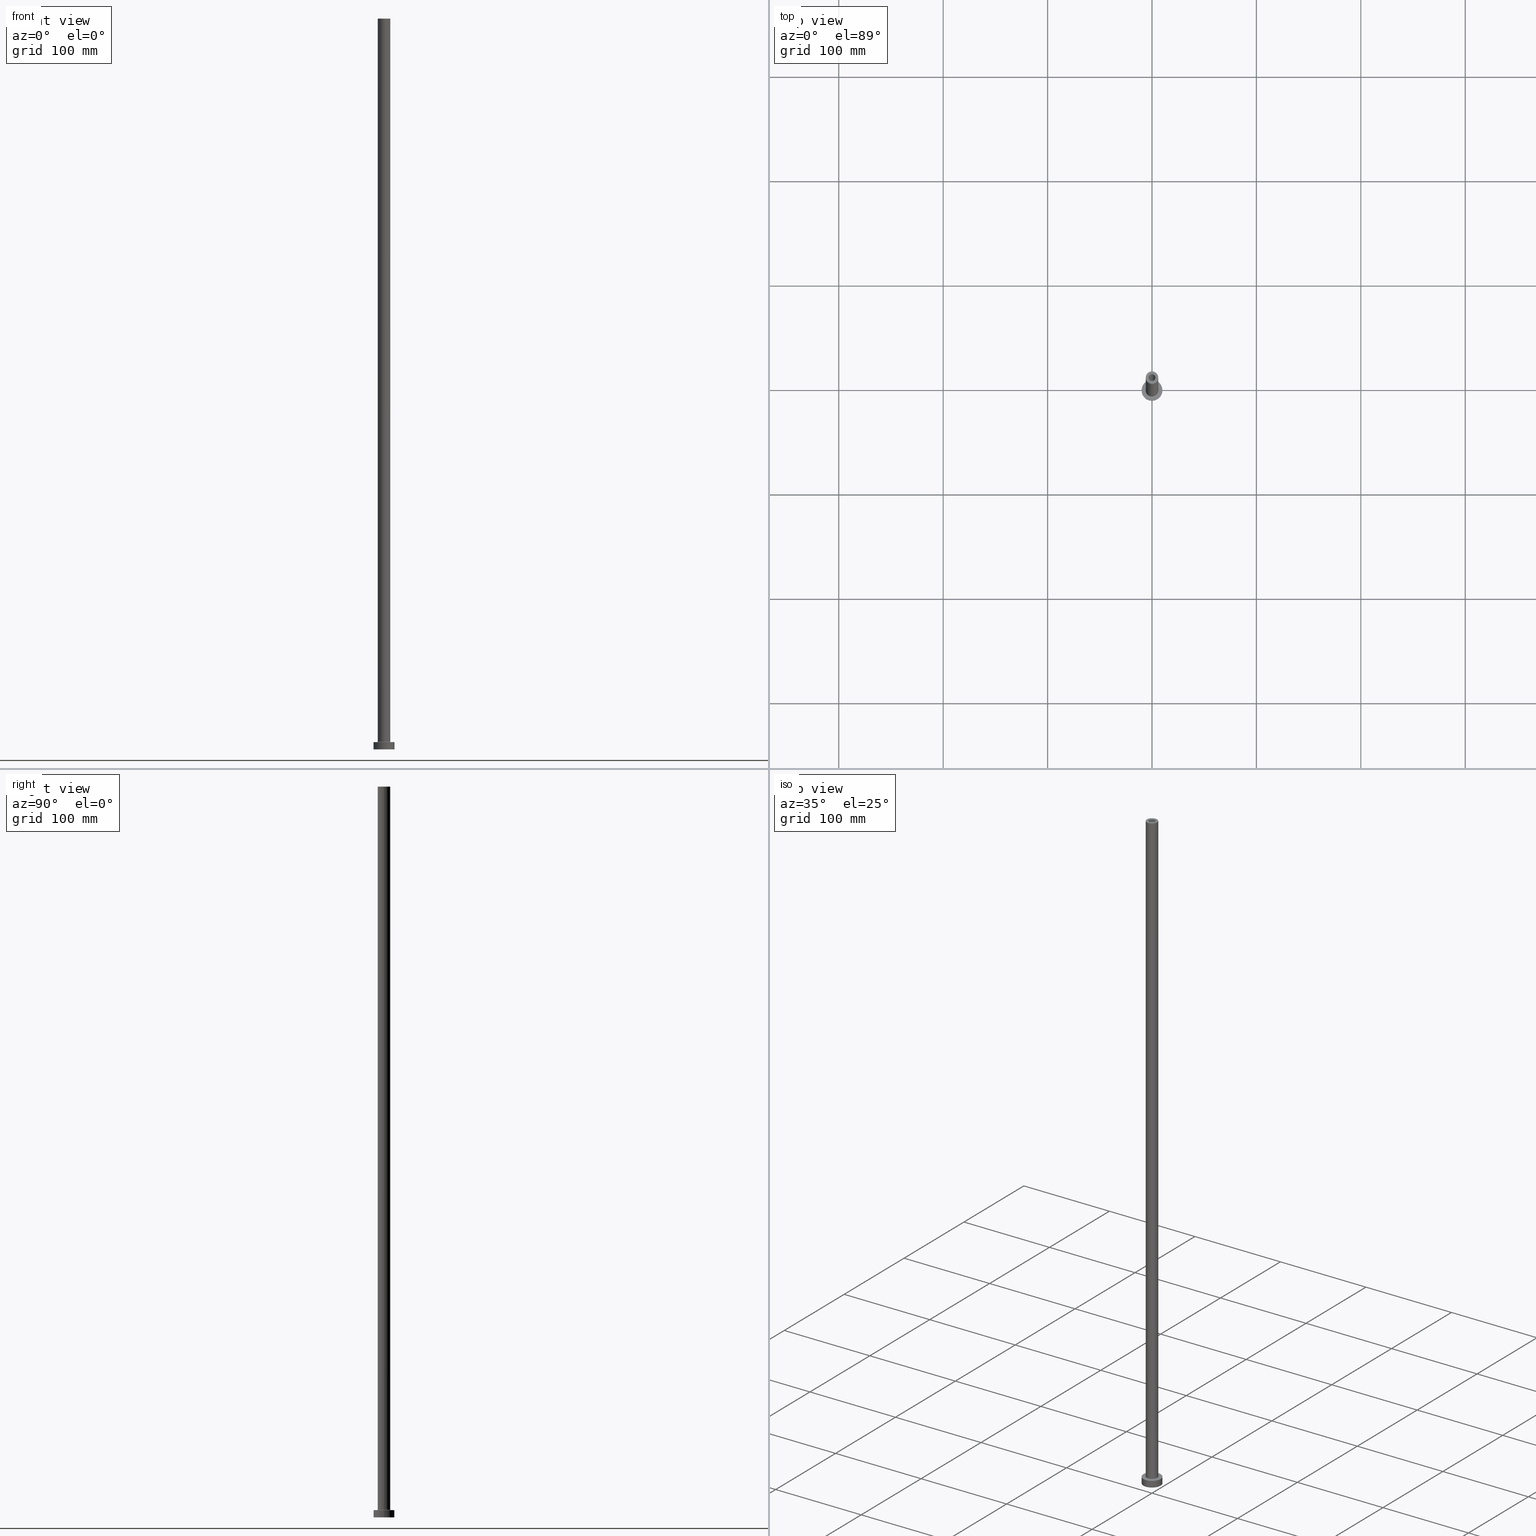
[diagram: canonical four-view strip — front | top / right | iso, engineering-drawing reading convention]
A machine part, canonical four-view strip (front | top / right | iso — engineering-drawing reading convention). The complete STEP part file that produces these views, byte-faithful:
ISO-10303-21;
HEADER;
FILE_DESCRIPTION (( 'STEP AP203' ),
    '1' );
FILE_NAME ('1a08.STEP',
    '2023-02-13T13:29:11',
    ( '' ),
    ( '' ),
    'SwSTEP 2.0',
    'SolidWorks 2019',
    '' );
FILE_SCHEMA (( 'CONFIG_CONTROL_DESIGN' ));
ENDSEC;

DATA;
#1 = DATE_TIME_ROLE ( 'creation_date' ) ;
#2 = PERSON_AND_ORGANIZATION_ROLE ( 'classification_officer' ) ;
#3 = EDGE_CURVE ( 'NONE', #100, #349, #290, .T. ) ;
#4 = ORIENTED_EDGE ( 'NONE', *, *, #400, .F. ) ;
#5 = TOROIDAL_SURFACE ( 'NONE', #140, 6.500000000000000888, 0.5000000000000000000 ) ;
#6 = ORIENTED_EDGE ( 'NONE', *, *, #285, .F. ) ;
#7 = CC_DESIGN_DATE_AND_TIME_ASSIGNMENT ( #170, #1, ( #449 ) ) ;
#8 = FACE_OUTER_BOUND ( 'NONE', #206, .T. ) ;
#9 = DIRECTION ( 'NONE',  ( 1.000000000000000000, 0.000000000000000000, 0.000000000000000000 ) ) ;
#10 = CARTESIAN_POINT ( 'NONE',  ( -6.000000000000000888, 0.000000000000000000, 700.0000000000000000 ) ) ;
#11 = LOCAL_TIME ( 14, 29, 11.00000000000000000, #189 ) ;
#12 = FACE_OUTER_BOUND ( 'NONE', #168, .T. ) ;
#13 = CARTESIAN_POINT ( 'NONE',  ( 0.000000000000000000, 0.000000000000000000, 7.000000000000000000 ) ) ;
#14 = FACE_OUTER_BOUND ( 'NONE', #457, .T. ) ;
#15 = EDGE_CURVE ( 'NONE', #311, #226, #258, .T. ) ;
#16 = CARTESIAN_POINT ( 'NONE',  ( -3.399999999999999911, 0.000000000000000000, 654.9999999999998863 ) ) ;
#17 = ORIENTED_EDGE ( 'NONE', *, *, #395, .T. ) ;
#18 = DIRECTION ( 'NONE',  ( 0.000000000000000000, 0.000000000000000000, 1.000000000000000000 ) ) ;
#19 = CARTESIAN_POINT ( 'NONE',  ( 3.250000000000000444, 3.980102097228898231E-16, 654.9999999999998863 ) ) ;
#20 = CARTESIAN_POINT ( 'NONE',  ( 0.000000000000000000, 0.000000000000000000, 700.0000000000000000 ) ) ;
#21 = CARTESIAN_POINT ( 'NONE',  ( -10.00000000000000000, 0.000000000000000000, 0.000000000000000000 ) ) ;
#22 = CARTESIAN_POINT ( 'NONE',  ( 0.000000000000000000, 0.000000000000000000, 654.9999999999998863 ) ) ;
#23 = ADVANCED_FACE ( 'NONE', ( #116, #152 ), #77, .T. ) ;
#24 = EDGE_LOOP ( 'NONE', ( #6, #107 ) ) ;
#25 = ORIENTED_EDGE ( 'NONE', *, *, #356, .F. ) ;
#26 = CARTESIAN_POINT ( 'NONE',  ( -3.250000000000000444, 0.000000000000000000, 654.9999999999998863 ) ) ;
#27 = DIRECTION ( 'NONE',  ( 1.000000000000000000, 0.000000000000000000, -0.000000000000000000 ) ) ;
#28 = AXIS2_PLACEMENT_3D ( 'NONE', #267, #312, #224 ) ;
#29 = EDGE_LOOP ( 'NONE', ( #273, #57, #423, #371 ) ) ;
#30 = VERTEX_POINT ( 'NONE', #149 ) ;
#31 = DIRECTION ( 'NONE',  ( 0.000000000000000000, 0.000000000000000000, 1.000000000000000000 ) ) ;
#32 = CALENDAR_DATE ( 2023, 13, 2 ) ;
#33 = APPROVAL_DATE_TIME ( #357, #389 ) ;
#34 = CIRCLE ( 'NONE', #54, 6.000000000000000888 ) ;
#35 = ADVANCED_FACE ( 'NONE', ( #294, #364 ), #41, .F. ) ;
#36 = ORIENTED_EDGE ( 'NONE', *, *, #15, .T. ) ;
#37 = CARTESIAN_POINT ( 'NONE',  ( 0.000000000000000000, 0.000000000000000000, 700.0000000000000000 ) ) ;
#38 = CIRCLE ( 'NONE', #118, 10.00000000000000000 ) ;
#39 = DIRECTION ( 'NONE',  ( -1.000000000000000000, 0.000000000000000000, 0.000000000000000000 ) ) ;
#40 = DIRECTION ( 'NONE',  ( 1.000000000000000000, 0.000000000000000000, 0.000000000000000000 ) ) ;
#41 = PLANE ( 'NONE',  #460 ) ;
#42 = DIRECTION ( 'NONE',  ( -0.000000000000000000, -0.000000000000000000, -1.000000000000000000 ) ) ;
#43 = FACE_OUTER_BOUND ( 'NONE', #346, .T. ) ;
#44 = CC_DESIGN_APPROVAL ( #179, ( #449 ) ) ;
#45 = CIRCLE ( 'NONE', #216, 10.00000000000000000 ) ;
#46 = DIRECTION ( 'NONE',  ( -1.000000000000000000, 0.000000000000000000, 0.000000000000000000 ) ) ;
#47 = EDGE_CURVE ( 'NONE', #100, #345, #367, .T. ) ;
#48 = DIRECTION ( 'NONE',  ( 0.000000000000000000, 0.000000000000000000, -1.000000000000000000 ) ) ;
#49 = DIRECTION ( 'NONE',  ( -0.000000000000000000, -0.000000000000000000, -1.000000000000000000 ) ) ;
#50 = PLANE ( 'NONE',  #173 ) ;
#51 = ADVANCED_FACE ( 'NONE', ( #80, #43 ), #185, .T. ) ;
#52 = EDGE_LOOP ( 'NONE', ( #99, #72 ) ) ;
#53 = CARTESIAN_POINT ( 'NONE',  ( 0.000000000000000000, 0.000000000000000000, 7.000000000000000000 ) ) ;
#54 = AXIS2_PLACEMENT_3D ( 'NONE', #413, #31, #93 ) ;
#55 = DIRECTION ( 'NONE',  ( 0.000000000000000000, 0.000000000000000000, 1.000000000000000000 ) ) ;
#56 = PERSON_AND_ORGANIZATION ( #196, #355 ) ;
#57 = ORIENTED_EDGE ( 'NONE', *, *, #161, .T. ) ;
#58 = DIRECTION ( 'NONE',  ( -0.000000000000000000, -0.000000000000000000, -1.000000000000000000 ) ) ;
#59 =( NAMED_UNIT ( * ) SI_UNIT ( $, .STERADIAN. ) SOLID_ANGLE_UNIT ( ) );
#60 = EDGE_LOOP ( 'NONE', ( #453, #61, #212, #199 ) ) ;
#61 = ORIENTED_EDGE ( 'NONE', *, *, #202, .T. ) ;
#62 =( LENGTH_UNIT ( ) NAMED_UNIT ( * ) SI_UNIT ( .MILLI., .METRE. ) );
#63 = AXIS2_PLACEMENT_3D ( 'NONE', #266, #343, #341 ) ;
#64 = ORIENTED_EDGE ( 'NONE', *, *, #415, .F. ) ;
#65 = APPROVAL_STATUS ( 'not_yet_approved' ) ;
#66 = DATE_TIME_ROLE ( 'classification_date' ) ;
#67 = CC_DESIGN_PERSON_AND_ORGANIZATION_ASSIGNMENT ( #427, #2, ( #126 ) ) ;
#68 = VECTOR ( 'NONE', #154, 1000.000000000000000 ) ;
#69 = DATE_AND_TIME ( #352, #11 ) ;
#70 = AXIS2_PLACEMENT_3D ( 'NONE', #275, #88, #121 ) ;
#71 = VERTEX_POINT ( 'NONE', #261 ) ;
#72 = ORIENTED_EDGE ( 'NONE', *, *, #251, .T. ) ;
#73 = DIRECTION ( 'NONE',  ( -0.000000000000000000, -0.000000000000000000, -1.000000000000000000 ) ) ;
#74 = CIRCLE ( 'NONE', #89, 3.250000000000000444 ) ;
#75 = AXIS2_PLACEMENT_3D ( 'NONE', #329, #145, #292 ) ;
#76 = LINE ( 'NONE', #326, #281 ) ;
#77 = PLANE ( 'NONE',  #344 ) ;
#78 = CARTESIAN_POINT ( 'NONE',  ( 0.000000000000000000, 0.000000000000000000, 700.0000000000000000 ) ) ;
#79 = EDGE_CURVE ( 'NONE', #226, #381, #263, .T. ) ;
#80 = FACE_BOUND ( 'NONE', #432, .T. ) ;
#81 = CARTESIAN_POINT ( 'NONE',  ( -6.500000000000000888, 7.960204194457796463E-16, 6.999999999999975131 ) ) ;
#82 = DIRECTION ( 'NONE',  ( 0.000000000000000000, 0.000000000000000000, -1.000000000000000000 ) ) ;
#83 = AXIS2_PLACEMENT_3D ( 'NONE', #131, #235, #379 ) ;
#84 = DIRECTION ( 'NONE',  ( 0.000000000000000000, 0.000000000000000000, -1.000000000000000000 ) ) ;
#85 = CARTESIAN_POINT ( 'NONE',  ( 0.000000000000000000, 0.000000000000000000, 654.9999999999998863 ) ) ;
#86 = ADVANCED_FACE ( 'NONE', ( #12 ), #405, .T. ) ;
#87 = DIRECTION ( 'NONE',  ( 1.000000000000000000, 0.000000000000000000, 0.000000000000000000 ) ) ;
#88 = DIRECTION ( 'NONE',  ( 0.000000000000000000, 0.000000000000000000, 1.000000000000000000 ) ) ;
#89 = AXIS2_PLACEMENT_3D ( 'NONE', #78, #438, #335 ) ;
#90 = ORIENTED_EDGE ( 'NONE', *, *, #395, .F. ) ;
#91 = DIRECTION ( 'NONE',  ( 1.000000000000000000, 0.000000000000000000, 0.000000000000000000 ) ) ;
#92 = CIRCLE ( 'NONE', #282, 6.500000000000000888 ) ;
#93 = DIRECTION ( 'NONE',  ( 1.000000000000000000, 0.000000000000000000, 0.000000000000000000 ) ) ;
#94 = ORIENTED_EDGE ( 'NONE', *, *, #113, .T. ) ;
#95 = CARTESIAN_POINT ( 'NONE',  ( 3.399999999999999911, 4.163799117101000559E-16, 654.9999999999998863 ) ) ;
#96 = APPLICATION_PROTOCOL_DEFINITION ( 'international standard', 'config_control_design', 1994, #333 ) ;
#97 = VERTEX_POINT ( 'NONE', #362 ) ;
#98 = ADVANCED_FACE ( 'NONE', ( #150 ), #186, .T. ) ;
#99 = ORIENTED_EDGE ( 'NONE', *, *, #3, .T. ) ;
#100 = VERTEX_POINT ( 'NONE', #109 ) ;
#101 = VECTOR ( 'NONE', #332, 1000.000000000000000 ) ;
#102 = APPROVAL_ROLE ( '' ) ;
#103 = ADVANCED_FACE ( 'NONE', ( #8 ), #398, .F. ) ;
#104 = DATE_AND_TIME ( #136, #392 ) ;
#105 = EDGE_CURVE ( 'NONE', #141, #314, #76, .T. ) ;
#106 = AXIS2_PLACEMENT_3D ( 'NONE', #307, #274, #417 ) ;
#107 = ORIENTED_EDGE ( 'NONE', *, *, #161, .F. ) ;
#108 = EDGE_LOOP ( 'NONE', ( #454, #242 ) ) ;
#109 = CARTESIAN_POINT ( 'NONE',  ( -6.000000000000000888, 0.000000000000000000, 700.0000000000000000 ) ) ;
#110 = APPROVAL_PERSON_ORGANIZATION ( #56, #179, #373 ) ;
#111 = DIRECTION ( 'NONE',  ( 0.000000000000000000, 0.000000000000000000, 1.000000000000000000 ) ) ;
#112 = ADVANCED_BREP_SHAPE_REPRESENTATION ( '1a08', ( #137, #293 ), #316 ) ;
#113 = EDGE_CURVE ( 'NONE', #141, #279, #74, .T. ) ;
#114 = DIRECTION ( 'NONE',  ( 1.000000000000000000, 0.000000000000000000, -0.000000000000000000 ) ) ;
#115 = DIRECTION ( 'NONE',  ( 0.000000000000000000, 0.000000000000000000, 1.000000000000000000 ) ) ;
#116 = FACE_BOUND ( 'NONE', #359, .T. ) ;
#117 = CARTESIAN_POINT ( 'NONE',  ( 0.000000000000000000, 0.000000000000000000, 7.000000000000000000 ) ) ;
#118 = AXIS2_PLACEMENT_3D ( 'NONE', #375, #18, #227 ) ;
#119 = DIRECTION ( 'NONE',  ( 0.000000000000000000, 0.000000000000000000, -1.000000000000000000 ) ) ;
#120 = CARTESIAN_POINT ( 'NONE',  ( 3.250000000000000444, 3.980102097228898231E-16, 700.0000000000000000 ) ) ;
#121 = DIRECTION ( 'NONE',  ( 1.000000000000000000, 0.000000000000000000, 0.000000000000000000 ) ) ;
#122 = ORIENTED_EDGE ( 'NONE', *, *, #455, .T. ) ;
#123 = DIRECTION ( 'NONE',  ( 0.000000000000000000, 0.000000000000000000, 1.000000000000000000 ) ) ;
#124 = ORIENTED_EDGE ( 'NONE', *, *, #400, .T. ) ;
#125 = CARTESIAN_POINT ( 'NONE',  ( 0.000000000000000000, 0.000000000000000000, 7.000000000000000000 ) ) ;
#126 = SECURITY_CLASSIFICATION ( '', '', #283 ) ;
#127 = DIRECTION ( 'NONE',  ( 0.000000000000000000, 0.000000000000000000, -1.000000000000000000 ) ) ;
#128 = ADVANCED_FACE ( 'NONE', ( #334 ), #182, .F. ) ;
#129 = ORIENTED_EDGE ( 'NONE', *, *, #260, .F. ) ;
#130 = EDGE_LOOP ( 'NONE', ( #288, #17, #4, #213 ) ) ;
#131 = CARTESIAN_POINT ( 'NONE',  ( 0.000000000000000000, 0.000000000000000000, 0.000000000000000000 ) ) ;
#132 = ORIENTED_EDGE ( 'NONE', *, *, #430, .T. ) ;
#133 = EDGE_CURVE ( 'NONE', #279, #141, #171, .T. ) ;
#134 = PERSON_AND_ORGANIZATION_ROLE ( 'creator' ) ;
#135 = VECTOR ( 'NONE', #42, 1000.000000000000000 ) ;
#136 = CALENDAR_DATE ( 2023, 13, 2 ) ;
#137 = MANIFOLD_SOLID_BREP ( 'Odebrat vysunut�m4', #434 ) ;
#138 = PRODUCT ( '1a08', '1a08', '', ( #411 ) ) ;
#139 = APPROVAL_PERSON_ORGANIZATION ( #208, #389, #102 ) ;
#140 = AXIS2_PLACEMENT_3D ( 'NONE', #270, #378, #336 ) ;
#141 = VERTEX_POINT ( 'NONE', #265 ) ;
#142 = ORIENTED_EDGE ( 'NONE', *, *, #319, .T. ) ;
#143 = CARTESIAN_POINT ( 'NONE',  ( 0.000000000000000000, 0.000000000000000000, 664.6166522241369421 ) ) ;
#144 = AXIS2_PLACEMENT_3D ( 'NONE', #37, #177, #394 ) ;
#145 = DIRECTION ( 'NONE',  ( 0.000000000000000000, -1.000000000000000000, 0.000000000000000000 ) ) ;
#146 = EDGE_CURVE ( 'NONE', #374, #420, #230, .T. ) ;
#147 = AXIS2_PLACEMENT_3D ( 'NONE', #402, #325, #255 ) ;
#148 = CIRCLE ( 'NONE', #75, 0.5000000000000004441 ) ;
#149 = CARTESIAN_POINT ( 'NONE',  ( 6.500000000000000888, 0.000000000000000000, 6.999999999999975131 ) ) ;
#150 = FACE_OUTER_BOUND ( 'NONE', #60, .T. ) ;
#151 = EDGE_CURVE ( 'NONE', #374, #97, #262, .T. ) ;
#152 = FACE_OUTER_BOUND ( 'NONE', #52, .T. ) ;
#153 = DIRECTION ( 'NONE',  ( -1.000000000000000000, 0.000000000000000000, 0.000000000000000000 ) ) ;
#154 = DIRECTION ( 'NONE',  ( -0.000000000000000000, -0.000000000000000000, -1.000000000000000000 ) ) ;
#155 = AXIS2_PLACEMENT_3D ( 'NONE', #85, #160, #407 ) ;
#156 = CARTESIAN_POINT ( 'NONE',  ( 3.399999999999999911, 4.163799117101000559E-16, 0.000000000000000000 ) ) ;
#157 = LINE ( 'NONE', #448, #205 ) ;
#158 = DIRECTION ( 'NONE',  ( 1.000000000000000000, 0.000000000000000000, 0.000000000000000000 ) ) ;
#159 = VERTEX_POINT ( 'NONE', #16 ) ;
#160 = DIRECTION ( 'NONE',  ( 0.000000000000000000, 0.000000000000000000, 1.000000000000000000 ) ) ;
#161 = EDGE_CURVE ( 'NONE', #311, #159, #309, .T. ) ;
#162 = ORIENTED_EDGE ( 'NONE', *, *, #347, .F. ) ;
#163 = ORIENTED_EDGE ( 'NONE', *, *, #260, .T. ) ;
#164 = FACE_OUTER_BOUND ( 'NONE', #276, .T. ) ;
#165 = CIRCLE ( 'NONE', #256, 3.250000000000000444 ) ;
#166 = DIRECTION ( 'NONE',  ( -0.000000000000000000, -0.000000000000000000, -1.000000000000000000 ) ) ;
#167 = ORIENTED_EDGE ( 'NONE', *, *, #3, .F. ) ;
#168 = EDGE_LOOP ( 'NONE', ( #409, #324, #236, #250 ) ) ;
#169 = FACE_OUTER_BOUND ( 'NONE', #24, .T. ) ;
#170 = DATE_AND_TIME ( #32, #361 ) ;
#171 = CIRCLE ( 'NONE', #397, 3.250000000000000444 ) ;
#172 = DATE_AND_TIME ( #315, #331 ) ;
#173 = AXIS2_PLACEMENT_3D ( 'NONE', #22, #383, #27 ) ;
#174 = EDGE_CURVE ( 'NONE', #314, #350, #165, .T. ) ;
#175 = ORIENTED_EDGE ( 'NONE', *, *, #47, .T. ) ;
#176 = CIRCLE ( 'NONE', #63, 6.000000000000000888 ) ;
#177 = DIRECTION ( 'NONE',  ( 0.000000000000000000, 0.000000000000000000, 1.000000000000000000 ) ) ;
#178 = DIRECTION ( 'NONE',  ( 0.000000000000000000, 0.000000000000000000, 1.000000000000000000 ) ) ;
#179 = APPROVAL ( #348, 'NEUR�EN�' ) ;
#180 = CARTESIAN_POINT ( 'NONE',  ( 0.000000000000000000, 0.000000000000000000, 654.9999999999998863 ) ) ;
#181 = CARTESIAN_POINT ( 'NONE',  ( 0.000000000000000000, 0.000000000000000000, 700.0000000000000000 ) ) ;
#182 = CYLINDRICAL_SURFACE ( 'NONE', #190, 3.399999999999999911 ) ;
#183 = EDGE_CURVE ( 'NONE', #71, #30, #148, .T. ) ;
#184 = VECTOR ( 'NONE', #340, 1000.000000000000000 ) ;
#185 = PLANE ( 'NONE',  #425 ) ;
#186 = CYLINDRICAL_SURFACE ( 'NONE', #214, 6.000000000000000888 ) ;
#187 = CARTESIAN_POINT ( 'NONE',  ( 0.000000000000000000, 0.000000000000000000, 700.0000000000000000 ) ) ;
#188 = CARTESIAN_POINT ( 'NONE',  ( -6.000000000000000888, 0.000000000000000000, 7.499999999999951150 ) ) ;
#189 = COORDINATED_UNIVERSAL_TIME_OFFSET ( 1, 0, .AHEAD. ) ;
#190 = AXIS2_PLACEMENT_3D ( 'NONE', #143, #119, #39 ) ;
#191 = APPROVAL_PERSON_ORGANIZATION ( #390, #436, #248 ) ;
#192 = ORIENTED_EDGE ( 'NONE', *, *, #422, .F. ) ;
#193 = CARTESIAN_POINT ( 'NONE',  ( 6.000000000000000888, 7.347880794884120722E-16, 700.0000000000000000 ) ) ;
#194 = ADVANCED_FACE ( 'NONE', ( #14 ), #399, .T. ) ;
#195 = LINE ( 'NONE', #120, #184 ) ;
#196 = PERSON ( 'NEUR�EN�', 'NEUR�EN�', 'NEUR�EN�', ('NEUR�EN�'), ('NEUR�EN�'), ('NEUR�EN�') ) ;
#197 = CARTESIAN_POINT ( 'NONE',  ( 0.000000000000000000, 0.000000000000000000, 0.000000000000000000 ) ) ;
#198 = ORIENTED_EDGE ( 'NONE', *, *, #105, .T. ) ;
#199 = ORIENTED_EDGE ( 'NONE', *, *, #47, .F. ) ;
#200 = CARTESIAN_POINT ( 'NONE',  ( -10.00000000000000000, 0.000000000000000000, 7.000000000000000000 ) ) ;
#201 = DIRECTION ( 'NONE',  ( 1.224646799147353207E-16, 1.000000000000000000, -0.000000000000000000 ) ) ;
#202 = EDGE_CURVE ( 'NONE', #349, #71, #366, .T. ) ;
#203 = VERTEX_POINT ( 'NONE', #81 ) ;
#204 = EDGE_LOOP ( 'NONE', ( #129, #396, #198, #433 ) ) ;
#205 = VECTOR ( 'NONE', #351, 1000.000000000000000 ) ;
#206 = EDGE_LOOP ( 'NONE', ( #384, #36, #310, #25 ) ) ;
#207 = COORDINATED_UNIVERSAL_TIME_OFFSET ( 1, 0, .AHEAD. ) ;
#208 = PERSON_AND_ORGANIZATION ( #196, #355 ) ;
#209 = PERSON_AND_ORGANIZATION ( #196, #355 ) ;
#210 = CIRCLE ( 'NONE', #155, 3.399999999999999911 ) ;
#211 = ADVANCED_FACE ( 'NONE', ( #222 ), #368, .F. ) ;
#212 = ORIENTED_EDGE ( 'NONE', *, *, #415, .T. ) ;
#213 = ORIENTED_EDGE ( 'NONE', *, *, #183, .F. ) ;
#214 = AXIS2_PLACEMENT_3D ( 'NONE', #187, #215, #153 ) ;
#215 = DIRECTION ( 'NONE',  ( -0.000000000000000000, -0.000000000000000000, -1.000000000000000000 ) ) ;
#216 = AXIS2_PLACEMENT_3D ( 'NONE', #53, #302, #91 ) ;
#217 = EDGE_CURVE ( 'NONE', #203, #30, #414, .T. ) ;
#218 = CARTESIAN_POINT ( 'NONE',  ( 10.00000000000000000, 1.224646799147353256E-15, 7.000000000000000000 ) ) ;
#219 = CARTESIAN_POINT ( 'NONE',  ( 3.399999999999999911, 4.163799117101000559E-16, 664.6166522241369421 ) ) ;
#220 = CARTESIAN_POINT ( 'NONE',  ( 0.000000000000000000, 0.000000000000000000, 7.000000000000000000 ) ) ;
#221 = DIRECTION ( 'NONE',  ( 1.000000000000000000, 0.000000000000000000, -0.000000000000000000 ) ) ;
#222 = FACE_OUTER_BOUND ( 'NONE', #204, .T. ) ;
#223 = CARTESIAN_POINT ( 'NONE',  ( 0.000000000000000000, 0.000000000000000000, 654.9999999999998863 ) ) ;
#224 = DIRECTION ( 'NONE',  ( -1.000000000000000000, 0.000000000000000000, 0.000000000000000000 ) ) ;
#225 = APPLICATION_PROTOCOL_DEFINITION ( 'international standard', 'config_control_design', 1994, #424 ) ;
#226 = VERTEX_POINT ( 'NONE', #156 ) ;
#227 = DIRECTION ( 'NONE',  ( 1.000000000000000000, 0.000000000000000000, 0.000000000000000000 ) ) ;
#228 = UNCERTAINTY_MEASURE_WITH_UNIT (LENGTH_MEASURE( 1.000000000000000082E-05 ), #62, 'distance_accuracy_value', 'NONE');
#229 = FACE_OUTER_BOUND ( 'NONE', #269, .T. ) ;
#230 = CIRCLE ( 'NONE', #147, 10.00000000000000000 ) ;
#231 = ADVANCED_FACE ( 'NONE', ( #382 ), #5, .F. ) ;
#232 = AXIS2_PLACEMENT_3D ( 'NONE', #20, #127, #421 ) ;
#233 = ORIENTED_EDGE ( 'NONE', *, *, #217, .T. ) ;
#234 = CARTESIAN_POINT ( 'NONE',  ( 0.000000000000000000, 0.000000000000000000, 700.0000000000000000 ) ) ;
#235 = DIRECTION ( 'NONE',  ( 0.000000000000000000, 0.000000000000000000, 1.000000000000000000 ) ) ;
#236 = ORIENTED_EDGE ( 'NONE', *, *, #422, .T. ) ;
#237 = DIRECTION ( 'NONE',  ( -0.000000000000000000, -0.000000000000000000, -1.000000000000000000 ) ) ;
#238 =( NAMED_UNIT ( * ) PLANE_ANGLE_UNIT ( ) SI_UNIT ( $, .RADIAN. ) );
#239 = ORIENTED_EDGE ( 'NONE', *, *, #246, .F. ) ;
#240 = VERTEX_POINT ( 'NONE', #21 ) ;
#241 = CARTESIAN_POINT ( 'NONE',  ( 10.00000000000000000, 1.224646799147353256E-15, 7.000000000000000000 ) ) ;
#242 = ORIENTED_EDGE ( 'NONE', *, *, #79, .F. ) ;
#243 = CIRCLE ( 'NONE', #70, 3.250000000000000444 ) ;
#244 = COORDINATED_UNIVERSAL_TIME_OFFSET ( 1, 0, .AHEAD. ) ;
#245 = SHAPE_DEFINITION_REPRESENTATION ( #323, #112 ) ;
#246 = EDGE_CURVE ( 'NONE', #420, #374, #45, .T. ) ;
#247 = CC_DESIGN_APPROVAL ( #389, ( #126 ) ) ;
#248 = APPROVAL_ROLE ( '' ) ;
#249 = AXIS2_PLACEMENT_3D ( 'NONE', #125, #237, #412 ) ;
#250 = ORIENTED_EDGE ( 'NONE', *, *, #319, .F. ) ;
#251 = EDGE_CURVE ( 'NONE', #349, #100, #322, .T. ) ;
#252 = EDGE_LOOP ( 'NONE', ( #301, #132 ) ) ;
#253 = CC_DESIGN_PERSON_AND_ORGANIZATION_ASSIGNMENT ( #305, #271, ( #138 ) ) ;
#254 = ORIENTED_EDGE ( 'NONE', *, *, #347, .T. ) ;
#255 = DIRECTION ( 'NONE',  ( 1.000000000000000000, 0.000000000000000000, 0.000000000000000000 ) ) ;
#256 = AXIS2_PLACEMENT_3D ( 'NONE', #180, #111, #9 ) ;
#257 = DIRECTION ( 'NONE',  ( 0.000000000000000000, 0.000000000000000000, -1.000000000000000000 ) ) ;
#258 = LINE ( 'NONE', #219, #327 ) ;
#259 = DIRECTION ( 'NONE',  ( -1.000000000000000000, 0.000000000000000000, 0.000000000000000000 ) ) ;
#260 = EDGE_CURVE ( 'NONE', #279, #350, #195, .T. ) ;
#261 = CARTESIAN_POINT ( 'NONE',  ( 6.000000000000000888, 7.347880794884120722E-16, 7.499999999999951150 ) ) ;
#262 = LINE ( 'NONE', #218, #68 ) ;
#263 = CIRCLE ( 'NONE', #291, 3.399999999999999911 ) ;
#264 = CIRCLE ( 'NONE', #406, 3.399999999999999911 ) ;
#265 = CARTESIAN_POINT ( 'NONE',  ( -3.250000000000000444, 0.000000000000000000, 700.0000000000000000 ) ) ;
#266 = CARTESIAN_POINT ( 'NONE',  ( 0.000000000000000000, 0.000000000000000000, 7.499999999999951150 ) ) ;
#267 = CARTESIAN_POINT ( 'NONE',  ( 0.000000000000000000, 0.000000000000000000, 700.0000000000000000 ) ) ;
#268 = CC_DESIGN_PERSON_AND_ORGANIZATION_ASSIGNMENT ( #318, #459, ( #338 ) ) ;
#269 = EDGE_LOOP ( 'NONE', ( #94, #163, #277, #416 ) ) ;
#270 = CARTESIAN_POINT ( 'NONE',  ( 0.000000000000000000, 0.000000000000000000, 7.499999999999951150 ) ) ;
#271 = PERSON_AND_ORGANIZATION_ROLE ( 'design_owner' ) ;
#272 = AXIS2_PLACEMENT_3D ( 'NONE', #223, #115, #363 ) ;
#273 = ORIENTED_EDGE ( 'NONE', *, *, #15, .F. ) ;
#274 = DIRECTION ( 'NONE',  ( 0.000000000000000000, 0.000000000000000000, 1.000000000000000000 ) ) ;
#275 = CARTESIAN_POINT ( 'NONE',  ( 0.000000000000000000, 0.000000000000000000, 654.9999999999998863 ) ) ;
#276 = EDGE_LOOP ( 'NONE', ( #385, #167, #175, #122 ) ) ;
#277 = ORIENTED_EDGE ( 'NONE', *, *, #174, .F. ) ;
#278 = CYLINDRICAL_SURFACE ( 'NONE', #232, 3.250000000000000444 ) ;
#279 = VERTEX_POINT ( 'NONE', #342 ) ;
#280 = APPROVAL_STATUS ( 'not_yet_approved' ) ;
#281 = VECTOR ( 'NONE', #257, 1000.000000000000000 ) ;
#282 = AXIS2_PLACEMENT_3D ( 'NONE', #456, #166, #337 ) ;
#283 = SECURITY_CLASSIFICATION_LEVEL ( 'unclassified' ) ;
#284 = COORDINATED_UNIVERSAL_TIME_OFFSET ( 1, 0, .AHEAD. ) ;
#285 = EDGE_CURVE ( 'NONE', #159, #311, #210, .T. ) ;
#286 = VECTOR ( 'NONE', #58, 1000.000000000000000 ) ;
#287 = ORIENTED_EDGE ( 'NONE', *, *, #113, .F. ) ;
#288 = ORIENTED_EDGE ( 'NONE', *, *, #455, .F. ) ;
#289 = DIRECTION ( 'NONE',  ( -0.000000000000000000, -0.000000000000000000, -1.000000000000000000 ) ) ;
#290 = CIRCLE ( 'NONE', #144, 6.000000000000000888 ) ;
#291 = AXIS2_PLACEMENT_3D ( 'NONE', #404, #73, #40 ) ;
#292 = DIRECTION ( 'NONE',  ( 0.000000000000000000, 0.000000000000000000, -1.000000000000000000 ) ) ;
#293 = AXIS2_PLACEMENT_3D ( 'NONE', #197, #123, #158 ) ;
#294 = FACE_BOUND ( 'NONE', #108, .T. ) ;
#295 = CARTESIAN_POINT ( 'NONE',  ( 0.000000000000000000, 0.000000000000000000, 664.6166522241369421 ) ) ;
#296 = ADVANCED_FACE ( 'NONE', ( #451 ), #431, .F. ) ;
#297 = DIRECTION ( 'NONE',  ( 0.000000000000000000, 0.000000000000000000, 1.000000000000000000 ) ) ;
#298 = DIRECTION ( 'NONE',  ( 1.000000000000000000, 0.000000000000000000, 0.000000000000000000 ) ) ;
#299 = DESIGN_CONTEXT ( 'detailed design', #333, 'design' ) ;
#300 = DIRECTION ( 'NONE',  ( -0.000000000000000000, -0.000000000000000000, -1.000000000000000000 ) ) ;
#301 = ORIENTED_EDGE ( 'NONE', *, *, #174, .T. ) ;
#302 = DIRECTION ( 'NONE',  ( 0.000000000000000000, 0.000000000000000000, 1.000000000000000000 ) ) ;
#303 = CC_DESIGN_PERSON_AND_ORGANIZATION_ASSIGNMENT ( #428, #134, ( #449 ) ) ;
#304 = CYLINDRICAL_SURFACE ( 'NONE', #28, 6.000000000000000888 ) ;
#305 = PERSON_AND_ORGANIZATION ( #196, #355 ) ;
#306 = ORIENTED_EDGE ( 'NONE', *, *, #183, .T. ) ;
#307 = CARTESIAN_POINT ( 'NONE',  ( 0.000000000000000000, 0.000000000000000000, 7.499999999999951150 ) ) ;
#308 = AXIS2_PLACEMENT_3D ( 'NONE', #234, #55, #87 ) ;
#309 = CIRCLE ( 'NONE', #272, 3.399999999999999911 ) ;
#310 = ORIENTED_EDGE ( 'NONE', *, *, #79, .T. ) ;
#311 = VERTEX_POINT ( 'NONE', #95 ) ;
#312 = DIRECTION ( 'NONE',  ( -0.000000000000000000, -0.000000000000000000, -1.000000000000000000 ) ) ;
#313 = DIRECTION ( 'NONE',  ( -1.000000000000000000, 1.224646799147351482E-16, 0.000000000000000000 ) ) ;
#314 = VERTEX_POINT ( 'NONE', #26 ) ;
#315 = CALENDAR_DATE ( 2023, 13, 2 ) ;
#316 =( GEOMETRIC_REPRESENTATION_CONTEXT ( 3 ) GLOBAL_UNCERTAINTY_ASSIGNED_CONTEXT ( ( #228 ) ) GLOBAL_UNIT_ASSIGNED_CONTEXT ( ( #62, #238, #59 ) ) REPRESENTATION_CONTEXT ( 'NONE', 'WORKASPACE' ) );
#317 = PRODUCT_RELATED_PRODUCT_CATEGORY ( 'detail', '', ( #138 ) ) ;
#318 = PERSON_AND_ORGANIZATION ( #196, #355 ) ;
#319 = EDGE_CURVE ( 'NONE', #420, #240, #445, .T. ) ;
#320 = ADVANCED_FACE ( 'NONE', ( #164 ), #304, .T. ) ;
#321 = ORIENTED_EDGE ( 'NONE', *, *, #151, .F. ) ;
#322 = CIRCLE ( 'NONE', #308, 6.000000000000000888 ) ;
#323 = PRODUCT_DEFINITION_SHAPE ( 'NONE', 'NONE',  #449 ) ;
#324 = ORIENTED_EDGE ( 'NONE', *, *, #151, .T. ) ;
#325 = DIRECTION ( 'NONE',  ( 0.000000000000000000, 0.000000000000000000, 1.000000000000000000 ) ) ;
#326 = CARTESIAN_POINT ( 'NONE',  ( -3.250000000000000444, 0.000000000000000000, 700.0000000000000000 ) ) ;
#327 = VECTOR ( 'NONE', #82, 1000.000000000000000 ) ;
#328 = DIRECTION ( 'NONE',  ( 0.000000000000000000, 0.000000000000000000, 1.000000000000000000 ) ) ;
#329 = CARTESIAN_POINT ( 'NONE',  ( 6.500000000000000888, 0.000000000000000000, 7.499999999999951150 ) ) ;
#330 = EDGE_CURVE ( 'NONE', #381, #226, #264, .T. ) ;
#331 = LOCAL_TIME ( 14, 29, 11.00000000000000000, #207 ) ;
#332 = DIRECTION ( 'NONE',  ( -0.000000000000000000, -0.000000000000000000, -1.000000000000000000 ) ) ;
#333 = APPLICATION_CONTEXT ( 'configuration controlled 3d designs of mechanical parts and assemblies' ) ;
#334 = FACE_OUTER_BOUND ( 'NONE', #29, .T. ) ;
#335 = DIRECTION ( 'NONE',  ( 1.000000000000000000, 0.000000000000000000, 0.000000000000000000 ) ) ;
#336 = DIRECTION ( 'NONE',  ( 1.000000000000000000, 0.000000000000000000, 0.000000000000000000 ) ) ;
#337 = DIRECTION ( 'NONE',  ( 1.000000000000000000, 0.000000000000000000, 0.000000000000000000 ) ) ;
#338 = PRODUCT_DEFINITION_FORMATION_WITH_SPECIFIED_SOURCE ( 'LIBOVOLN�', '', #138, .NOT_KNOWN. ) ;
#339 = EDGE_LOOP ( 'NONE', ( #162, #192 ) ) ;
#340 = DIRECTION ( 'NONE',  ( 0.000000000000000000, 0.000000000000000000, -1.000000000000000000 ) ) ;
#341 = DIRECTION ( 'NONE',  ( 1.000000000000000000, 0.000000000000000000, 0.000000000000000000 ) ) ;
#342 = CARTESIAN_POINT ( 'NONE',  ( 3.250000000000000444, 3.980102097228898231E-16, 700.0000000000000000 ) ) ;
#343 = DIRECTION ( 'NONE',  ( 0.000000000000000000, 0.000000000000000000, 1.000000000000000000 ) ) ;
#344 = AXIS2_PLACEMENT_3D ( 'NONE', #181, #328, #114 ) ;
#345 = VERTEX_POINT ( 'NONE', #188 ) ;
#346 = EDGE_LOOP ( 'NONE', ( #387, #450 ) ) ;
#347 = EDGE_CURVE ( 'NONE', #240, #97, #38, .T. ) ;
#348 = APPROVAL_STATUS ( 'not_yet_approved' ) ;
#349 = VERTEX_POINT ( 'NONE', #193 ) ;
#350 = VERTEX_POINT ( 'NONE', #19 ) ;
#351 = DIRECTION ( 'NONE',  ( 0.000000000000000000, 0.000000000000000000, -1.000000000000000000 ) ) ;
#352 = CALENDAR_DATE ( 2023, 13, 2 ) ;
#353 = CC_DESIGN_PERSON_AND_ORGANIZATION_ASSIGNMENT ( #209, #393, ( #338 ) ) ;
#354 = CALENDAR_DATE ( 2023, 13, 2 ) ;
#355 = ORGANIZATION ( 'NEUR�EN�', 'NEUR�EN�', '' ) ;
#356 = EDGE_CURVE ( 'NONE', #159, #381, #157, .T. ) ;
#357 = DATE_AND_TIME ( #354, #452 ) ;
#358 = ORIENTED_EDGE ( 'NONE', *, *, #133, .F. ) ;
#359 = EDGE_LOOP ( 'NONE', ( #287, #358 ) ) ;
#360 = AXIS2_PLACEMENT_3D ( 'NONE', #117, #289, #46 ) ;
#361 = LOCAL_TIME ( 14, 29, 11.00000000000000000, #244 ) ;
#362 = CARTESIAN_POINT ( 'NONE',  ( 10.00000000000000000, 1.224646799147353256E-15, 0.000000000000000000 ) ) ;
#363 = DIRECTION ( 'NONE',  ( 1.000000000000000000, 0.000000000000000000, 0.000000000000000000 ) ) ;
#364 = FACE_OUTER_BOUND ( 'NONE', #339, .T. ) ;
#365 = CC_DESIGN_DATE_AND_TIME_ASSIGNMENT ( #104, #66, ( #126 ) ) ;
#366 = LINE ( 'NONE', #443, #135 ) ;
#367 = LINE ( 'NONE', #10, #101 ) ;
#368 = CYLINDRICAL_SURFACE ( 'NONE', #437, 3.250000000000000444 ) ;
#369 = AXIS2_PLACEMENT_3D ( 'NONE', #220, #300, #259 ) ;
#370 = DIRECTION ( 'NONE',  ( -1.000000000000000000, 0.000000000000000000, 0.000000000000000000 ) ) ;
#371 = ORIENTED_EDGE ( 'NONE', *, *, #330, .T. ) ;
#372 = CARTESIAN_POINT ( 'NONE',  ( 0.000000000000000000, 0.000000000000000000, 0.000000000000000000 ) ) ;
#373 = APPROVAL_ROLE ( '' ) ;
#374 = VERTEX_POINT ( 'NONE', #241 ) ;
#375 = CARTESIAN_POINT ( 'NONE',  ( 0.000000000000000000, 0.000000000000000000, 0.000000000000000000 ) ) ;
#376 = AXIS2_PLACEMENT_3D ( 'NONE', #295, #48, #435 ) ;
#377 = AXIS2_PLACEMENT_3D ( 'NONE', #386, #201, #313 ) ;
#378 = DIRECTION ( 'NONE',  ( 0.000000000000000000, 0.000000000000000000, 1.000000000000000000 ) ) ;
#379 = DIRECTION ( 'NONE',  ( 1.000000000000000000, 0.000000000000000000, 0.000000000000000000 ) ) ;
#380 = ADVANCED_FACE ( 'NONE', ( #229 ), #278, .F. ) ;
#381 = VERTEX_POINT ( 'NONE', #418 ) ;
#382 = FACE_OUTER_BOUND ( 'NONE', #130, .T. ) ;
#383 = DIRECTION ( 'NONE',  ( 0.000000000000000000, 0.000000000000000000, 1.000000000000000000 ) ) ;
#384 = ORIENTED_EDGE ( 'NONE', *, *, #285, .T. ) ;
#385 = ORIENTED_EDGE ( 'NONE', *, *, #202, .F. ) ;
#386 = CARTESIAN_POINT ( 'NONE',  ( -6.500000000000000888, 7.960204194457796463E-16, 7.499999999999951150 ) ) ;
#387 = ORIENTED_EDGE ( 'NONE', *, *, #246, .T. ) ;
#388 = APPROVAL_DATE_TIME ( #172, #436 ) ;
#389 = APPROVAL ( #280, 'NEUR�EN�' ) ;
#390 = PERSON_AND_ORGANIZATION ( #196, #355 ) ;
#391 = COORDINATED_UNIVERSAL_TIME_OFFSET ( 1, 0, .AHEAD. ) ;
#392 = LOCAL_TIME ( 14, 29, 11.00000000000000000, #284 ) ;
#393 = PERSON_AND_ORGANIZATION_ROLE ( 'creator' ) ;
#394 = DIRECTION ( 'NONE',  ( 1.000000000000000000, 0.000000000000000000, 0.000000000000000000 ) ) ;
#395 = EDGE_CURVE ( 'NONE', #345, #203, #426, .T. ) ;
#396 = ORIENTED_EDGE ( 'NONE', *, *, #133, .T. ) ;
#397 = AXIS2_PLACEMENT_3D ( 'NONE', #440, #178, #298 ) ;
#398 = CYLINDRICAL_SURFACE ( 'NONE', #376, 3.399999999999999911 ) ;
#399 = CYLINDRICAL_SURFACE ( 'NONE', #369, 10.00000000000000000 ) ;
#400 = EDGE_CURVE ( 'NONE', #30, #203, #92, .T. ) ;
#401 = DIRECTION ( 'NONE',  ( 0.000000000000000000, 0.000000000000000000, 1.000000000000000000 ) ) ;
#402 = CARTESIAN_POINT ( 'NONE',  ( 0.000000000000000000, 0.000000000000000000, 7.000000000000000000 ) ) ;
#403 = ADVANCED_FACE ( 'NONE', ( #408, #169 ), #50, .F. ) ;
#404 = CARTESIAN_POINT ( 'NONE',  ( 0.000000000000000000, 0.000000000000000000, 0.000000000000000000 ) ) ;
#405 = CYLINDRICAL_SURFACE ( 'NONE', #360, 10.00000000000000000 ) ;
#406 = AXIS2_PLACEMENT_3D ( 'NONE', #372, #49, #410 ) ;
#407 = DIRECTION ( 'NONE',  ( 1.000000000000000000, 0.000000000000000000, 0.000000000000000000 ) ) ;
#408 = FACE_BOUND ( 'NONE', #252, .T. ) ;
#409 = ORIENTED_EDGE ( 'NONE', *, *, #146, .F. ) ;
#410 = DIRECTION ( 'NONE',  ( 1.000000000000000000, 0.000000000000000000, 0.000000000000000000 ) ) ;
#411 = MECHANICAL_CONTEXT ( 'NONE', #424, 'mechanical' ) ;
#412 = DIRECTION ( 'NONE',  ( 1.000000000000000000, 0.000000000000000000, 0.000000000000000000 ) ) ;
#413 = CARTESIAN_POINT ( 'NONE',  ( 0.000000000000000000, 0.000000000000000000, 7.499999999999951150 ) ) ;
#414 = CIRCLE ( 'NONE', #249, 6.500000000000000888 ) ;
#415 = EDGE_CURVE ( 'NONE', #71, #345, #176, .T. ) ;
#416 = ORIENTED_EDGE ( 'NONE', *, *, #105, .F. ) ;
#417 = DIRECTION ( 'NONE',  ( 1.000000000000000000, 0.000000000000000000, 0.000000000000000000 ) ) ;
#418 = CARTESIAN_POINT ( 'NONE',  ( -3.399999999999999911, 0.000000000000000000, 0.000000000000000000 ) ) ;
#419 = ORIENTED_EDGE ( 'NONE', *, *, #217, .F. ) ;
#420 = VERTEX_POINT ( 'NONE', #446 ) ;
#421 = DIRECTION ( 'NONE',  ( -1.000000000000000000, 0.000000000000000000, 0.000000000000000000 ) ) ;
#422 = EDGE_CURVE ( 'NONE', #97, #240, #444, .T. ) ;
#423 = ORIENTED_EDGE ( 'NONE', *, *, #356, .T. ) ;
#424 = APPLICATION_CONTEXT ( 'configuration controlled 3d designs of mechanical parts and assemblies' ) ;
#425 = AXIS2_PLACEMENT_3D ( 'NONE', #13, #297, #441 ) ;
#426 = CIRCLE ( 'NONE', #377, 0.5000000000000004441 ) ;
#427 = PERSON_AND_ORGANIZATION ( #196, #355 ) ;
#428 = PERSON_AND_ORGANIZATION ( #196, #355 ) ;
#429 = CC_DESIGN_SECURITY_CLASSIFICATION ( #126, ( #338 ) ) ;
#430 = EDGE_CURVE ( 'NONE', #350, #314, #243, .T. ) ;
#431 = TOROIDAL_SURFACE ( 'NONE', #106, 6.500000000000000888, 0.5000000000000000000 ) ;
#432 = EDGE_LOOP ( 'NONE', ( #124, #233 ) ) ;
#433 = ORIENTED_EDGE ( 'NONE', *, *, #430, .F. ) ;
#434 = CLOSED_SHELL ( 'NONE', ( #380, #103, #231, #98, #86, #194, #51, #35, #320, #23, #296, #128, #403, #211 ) ) ;
#435 = DIRECTION ( 'NONE',  ( -1.000000000000000000, 0.000000000000000000, 0.000000000000000000 ) ) ;
#436 = APPROVAL ( #65, 'NEUR�EN�' ) ;
#437 = AXIS2_PLACEMENT_3D ( 'NONE', #442, #84, #370 ) ;
#438 = DIRECTION ( 'NONE',  ( 0.000000000000000000, 0.000000000000000000, 1.000000000000000000 ) ) ;
#439 = CARTESIAN_POINT ( 'NONE',  ( 0.000000000000000000, 0.000000000000000000, 0.000000000000000000 ) ) ;
#440 = CARTESIAN_POINT ( 'NONE',  ( 0.000000000000000000, 0.000000000000000000, 700.0000000000000000 ) ) ;
#441 = DIRECTION ( 'NONE',  ( 1.000000000000000000, 0.000000000000000000, -0.000000000000000000 ) ) ;
#442 = CARTESIAN_POINT ( 'NONE',  ( 0.000000000000000000, 0.000000000000000000, 700.0000000000000000 ) ) ;
#443 = CARTESIAN_POINT ( 'NONE',  ( 6.000000000000000888, 7.347880794884120722E-16, 700.0000000000000000 ) ) ;
#444 = CIRCLE ( 'NONE', #83, 10.00000000000000000 ) ;
#445 = LINE ( 'NONE', #200, #286 ) ;
#446 = CARTESIAN_POINT ( 'NONE',  ( -10.00000000000000000, 0.000000000000000000, 7.000000000000000000 ) ) ;
#447 = EDGE_LOOP ( 'NONE', ( #90, #64, #306, #419 ) ) ;
#448 = CARTESIAN_POINT ( 'NONE',  ( -3.399999999999999911, 0.000000000000000000, 664.6166522241369421 ) ) ;
#449 = PRODUCT_DEFINITION ( 'NEZN�M�', '', #338, #299 ) ;
#450 = ORIENTED_EDGE ( 'NONE', *, *, #146, .T. ) ;
#451 = FACE_OUTER_BOUND ( 'NONE', #447, .T. ) ;
#452 = LOCAL_TIME ( 14, 29, 11.00000000000000000, #391 ) ;
#453 = ORIENTED_EDGE ( 'NONE', *, *, #251, .F. ) ;
#454 = ORIENTED_EDGE ( 'NONE', *, *, #330, .F. ) ;
#455 = EDGE_CURVE ( 'NONE', #345, #71, #34, .T. ) ;
#456 = CARTESIAN_POINT ( 'NONE',  ( 0.000000000000000000, 0.000000000000000000, 7.000000000000000000 ) ) ;
#457 = EDGE_LOOP ( 'NONE', ( #321, #239, #142, #254 ) ) ;
#458 = APPROVAL_DATE_TIME ( #69, #179 ) ;
#459 = PERSON_AND_ORGANIZATION_ROLE ( 'design_supplier' ) ;
#460 = AXIS2_PLACEMENT_3D ( 'NONE', #439, #401, #221 ) ;
#461 = CC_DESIGN_APPROVAL ( #436, ( #338 ) ) ;
ENDSEC;
END-ISO-10303-21;
